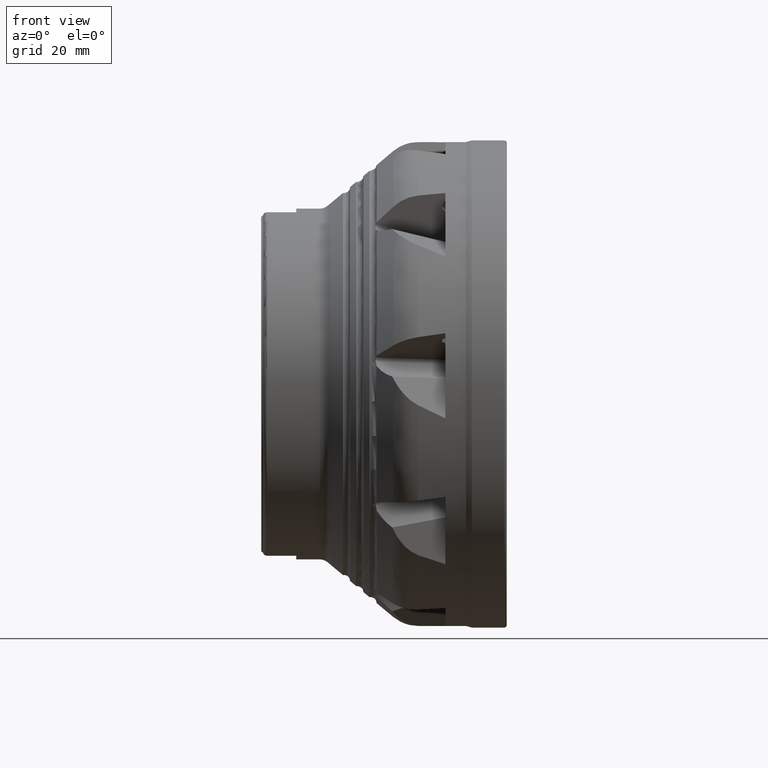
[diagram: clean part render]
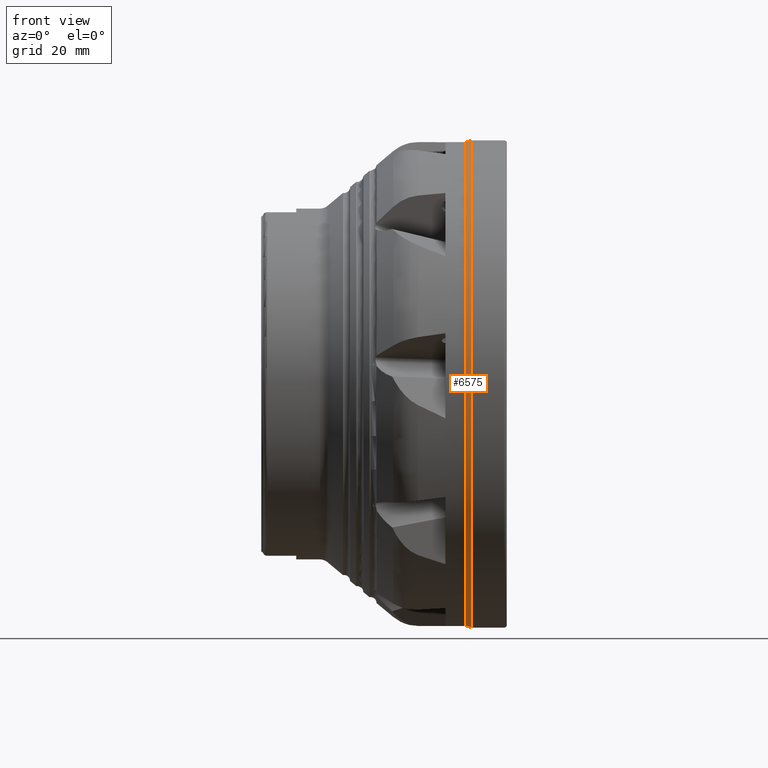
[diagram: same view with one face highlighted and labeled with its STEP entity id]
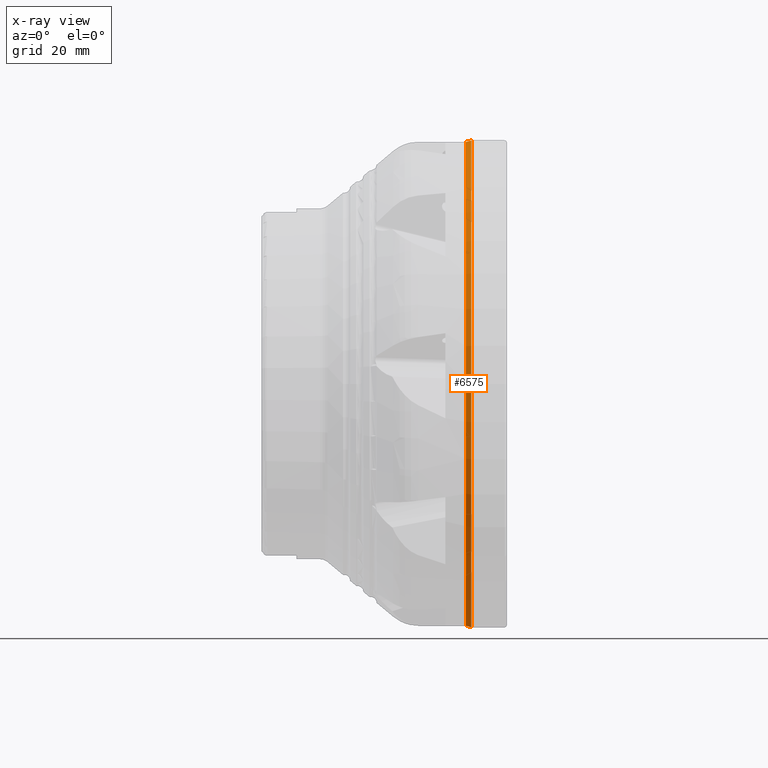
[diagram: x-ray of the same camera — body ghosted, the highlighted face saturated]
A machine part, front view. The second image highlights one B-rep face of the part: STEP entity #6575.
The next image is the same camera in x-ray: the body ghosted, the highlighted face saturated — about 0% of this face is hidden behind the body in this view.
In plain terms, the highlighted conical surface has half-angle 15.844 deg.
Its self-contained STEP definition (entity closure, byte-faithful):
#2087 = AXIS2_PLACEMENT_3D ( 'NONE', #15206, #15205, #15191 ) ;
#2487 = CONICAL_SURFACE ( 'NONE', #2087, 62.07500000000001000, 0.2765345005951361800 ) ;
#2488 = FACE_OUTER_BOUND ( 'NONE', #8496, .T. ) ;
#2679 = VECTOR ( 'NONE', #3261, 1000.000000000000000 ) ;
#2686 = LINE ( 'NONE', #3260, #2679 ) ;
#2690 = LINE ( 'NONE', #3268, #2691 ) ;
#2691 = VECTOR ( 'NONE', #3269, 1000.000000000000000 ) ;
#2741 = CIRCLE ( 'NONE', #4162, 62.07500000000001000 ) ;
#3260 = CARTESIAN_POINT ( 'NONE',  ( -8.726094347323080300, 0.0000000000000000000, -62.07500000000001000 ) ) ;
#3261 = DIRECTION ( 'NONE',  ( 0.9620073757481292200, 0.0000000000000000000, -0.2730234587104151100 ) ) ;
#3268 = CARTESIAN_POINT ( 'NONE',  ( -8.726094347323080300, 7.601995005707196600E-015, 62.07500000000001000 ) ) ;
#3269 = DIRECTION ( 'NONE',  ( 0.9620073757481292200, 3.343573048018494500E-017, 0.2730234587104151100 ) ) ;
#3626 = CARTESIAN_POINT ( 'NONE',  ( -8.726094347323080300, 0.0000000000000000000, 0.0000000000000000000 ) ) ;
#3634 = DIRECTION ( 'NONE',  ( 1.000000000000000000, -0.0000000000000000000, -0.0000000000000000000 ) ) ;
#3635 = DIRECTION ( 'NONE',  ( 0.0000000000000000000, 0.0000000000000000000, -1.000000000000000000 ) ) ;
#4162 = AXIS2_PLACEMENT_3D ( 'NONE', #3626, #3634, #3635 ) ;
#4364 = EDGE_CURVE ( 'NONE', #16604, #16605, #10337, .T. ) ;
#6575 = ADVANCED_FACE ( 'NONE', ( #2488 ), #2487, .T. ) ;
#7624 = ORIENTED_EDGE ( 'NONE', *, *, #9293, .F. ) ;
#7627 = ORIENTED_EDGE ( 'NONE', *, *, #9382, .T. ) ;
#7629 = ORIENTED_EDGE ( 'NONE', *, *, #9290, .T. ) ;
#7631 = ORIENTED_EDGE ( 'NONE', *, *, #4364, .F. ) ;
#7788 = CARTESIAN_POINT ( 'NONE',  ( -8.726094347323080300, 0.0000000000000000000, -62.07500000000001000 ) ) ;
#7790 = CARTESIAN_POINT ( 'NONE',  ( -8.726094347323080300, 7.601995005707196600E-015, 62.07500000000001700 ) ) ;
#7791 = CARTESIAN_POINT ( 'NONE',  ( -7.358920136258253000, 7.651777647258381300E-015, 62.46301223480675400 ) ) ;
#7793 = CARTESIAN_POINT ( 'NONE',  ( -7.358920136258253000, 0.0000000000000000000, -62.46301223480675400 ) ) ;
#8496 = EDGE_LOOP ( 'NONE', ( #7624, #7627, #7629, #7631 ) ) ;
#9290 = EDGE_CURVE ( 'NONE', #16602, #16605, #2686, .T. ) ;
#9293 = EDGE_CURVE ( 'NONE', #16603, #16604, #2690, .T. ) ;
#9382 = EDGE_CURVE ( 'NONE', #16603, #16602, #2741, .T. ) ;
#10040 = AXIS2_PLACEMENT_3D ( 'NONE', #11873, #11880, #11881 ) ;
#10337 = CIRCLE ( 'NONE', #10040, 62.46301223480675400 ) ;
#11873 = CARTESIAN_POINT ( 'NONE',  ( -7.358920136258253000, 0.0000000000000000000, 0.0000000000000000000 ) ) ;
#11880 = DIRECTION ( 'NONE',  ( 1.000000000000000000, -0.0000000000000000000, -0.0000000000000000000 ) ) ;
#11881 = DIRECTION ( 'NONE',  ( 0.0000000000000000000, 0.0000000000000000000, -1.000000000000000000 ) ) ;
#15191 = DIRECTION ( 'NONE',  ( 0.0000000000000000000, 0.0000000000000000000, -1.000000000000000000 ) ) ;
#15205 = DIRECTION ( 'NONE',  ( 1.000000000000000000, -0.0000000000000000000, -0.0000000000000000000 ) ) ;
#15206 = CARTESIAN_POINT ( 'NONE',  ( -8.726094347323080300, 0.0000000000000000000, 0.0000000000000000000 ) ) ;
#16602 = VERTEX_POINT ( 'NONE', #7788 ) ;
#16603 = VERTEX_POINT ( 'NONE', #7790 ) ;
#16604 = VERTEX_POINT ( 'NONE', #7791 ) ;
#16605 = VERTEX_POINT ( 'NONE', #7793 ) ;